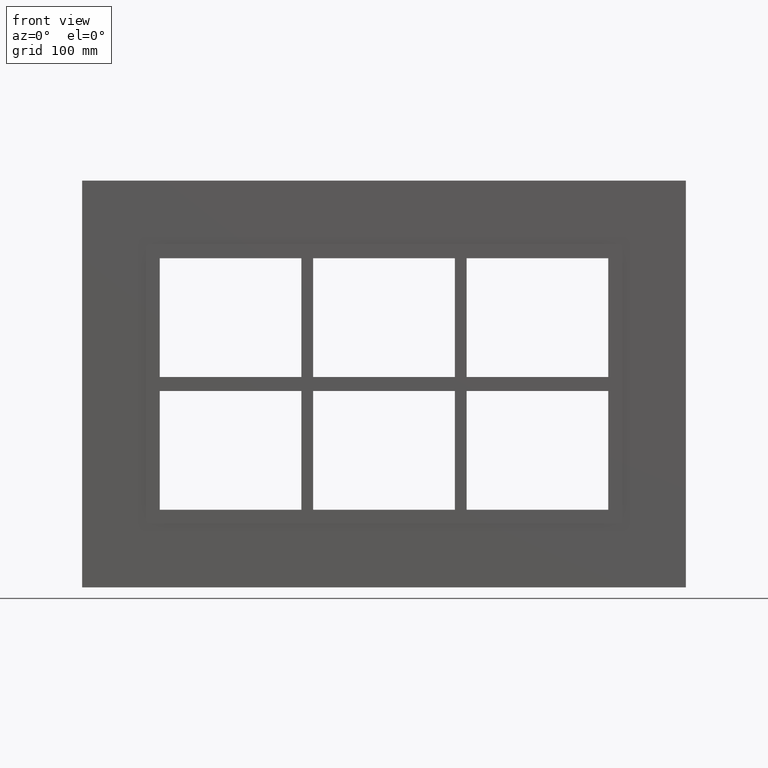
[diagram: clean part render]
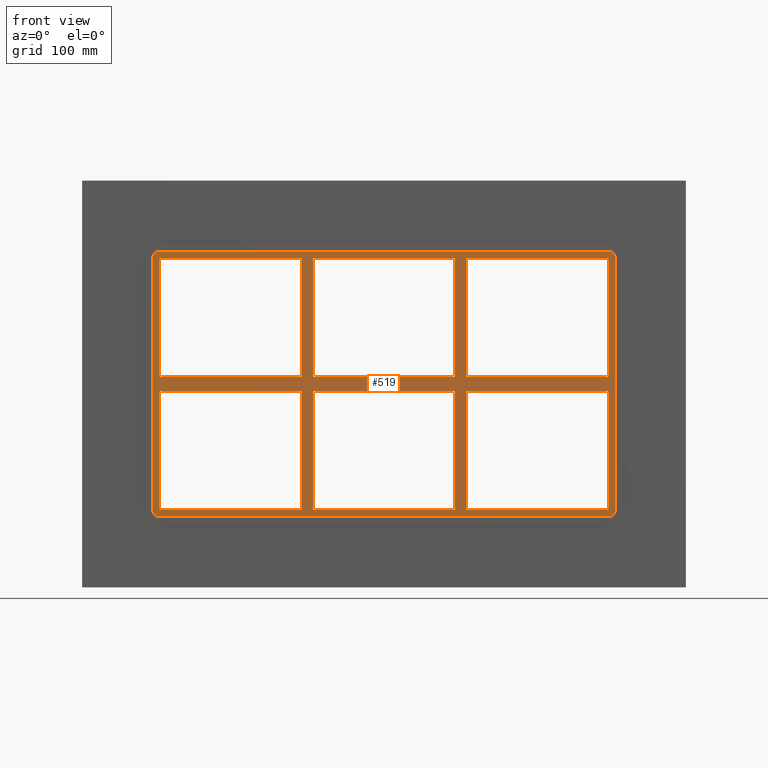
[diagram: same view with one face highlighted and labeled with its STEP entity id]
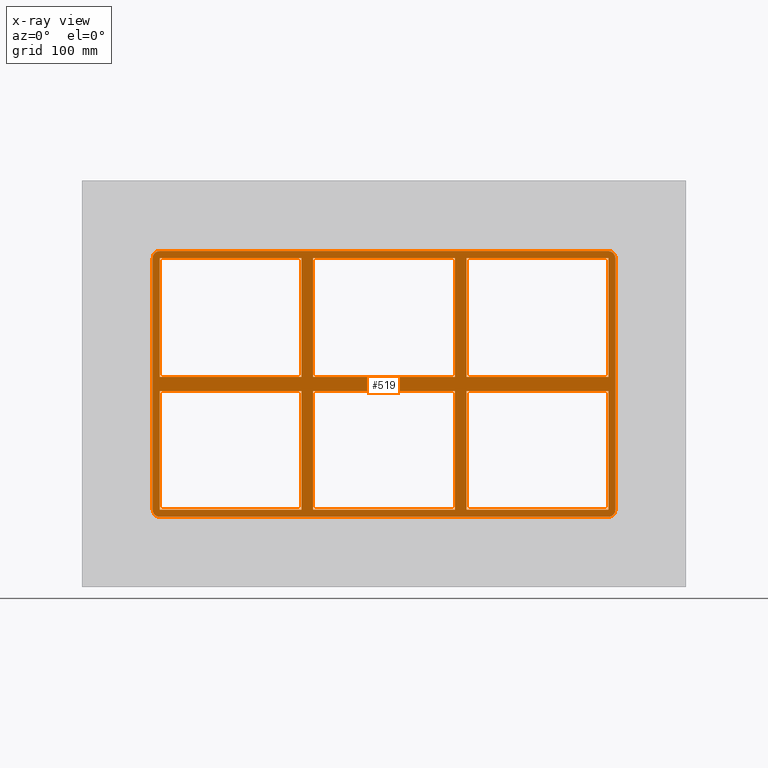
[diagram: x-ray of the same camera — body ghosted, the highlighted face saturated]
A machine part, front view. The second image highlights one B-rep face of the part: STEP entity #519.
The next image is the same camera in x-ray: the body ghosted, the highlighted face saturated — about 0% of this face is hidden behind the body in this view.
In plain terms, the highlighted planar face has unit normal (0, 1, 0).
Its self-contained STEP definition (entity closure, byte-faithful):
#73=CARTESIAN_POINT('',(60.24999999999865,-3.0,5.999999999999943));
#74=VERTEX_POINT('',#73);
#83=CARTESIAN_POINT('',(60.249999999998636,-3.0,107.00000000000003));
#84=VERTEX_POINT('',#83);
#85=CARTESIAN_POINT('',(60.24999999999865,-3.0,5.999999999999943));
#86=DIRECTION('',(0.0,0.0,1.0));
#87=VECTOR('',#86,101.00000000000009);
#88=LINE('',#85,#87);
#89=EDGE_CURVE('',#74,#84,#88,.T.);
#115=CARTESIAN_POINT('',(60.24999999999865,-3.0,-6.000000000009269));
#116=VERTEX_POINT('',#115);
#131=CARTESIAN_POINT('',(60.249999999998671,-3.0,-107.0));
#132=VERTEX_POINT('',#131);
#139=CARTESIAN_POINT('',(60.249999999998671,-3.0,-107.0));
#140=DIRECTION('',(0.0,0.0,1.0));
#141=VECTOR('',#140,100.99999999999072);
#142=LINE('',#139,#141);
#143=EDGE_CURVE('',#132,#116,#142,.T.);
#155=CARTESIAN_POINT('',(70.250000000003638,-3.0,5.999999999999943));
#156=VERTEX_POINT('',#155);
#171=CARTESIAN_POINT('',(70.250000000003638,-3.0,107.00000000000003));
#172=VERTEX_POINT('',#171);
#179=CARTESIAN_POINT('',(70.250000000003638,-3.0,107.00000000000003));
#180=DIRECTION('',(0.0,0.0,-1.0));
#181=VECTOR('',#180,101.00000000000009);
#182=LINE('',#179,#181);
#183=EDGE_CURVE('',#172,#156,#182,.T.);
#193=CARTESIAN_POINT('',(70.250000000003638,-3.0,-6.000000000009269));
#194=VERTEX_POINT('',#193);
#203=CARTESIAN_POINT('',(70.250000000003638,-3.0,-106.99999999998423));
#204=VERTEX_POINT('',#203);
#205=CARTESIAN_POINT('',(70.250000000003638,-3.0,-6.000000000009266));
#206=DIRECTION('',(0.0,0.0,-1.0));
#207=VECTOR('',#206,100.99999999997496);
#208=LINE('',#205,#207);
#209=EDGE_CURVE('',#194,#204,#208,.T.);
#242=CARTESIAN_POINT('',(-60.249999999996362,-3.0,-106.99999999998423));
#243=VERTEX_POINT('',#242);
#250=CARTESIAN_POINT('',(60.249999999998678,-3.0,-107.0));
#251=DIRECTION('',(-1.0,0.0,0.0));
#252=VECTOR('',#251,120.49999999999504);
#253=LINE('',#250,#252);
#254=EDGE_CURVE('',#132,#243,#253,.T.);
#265=CARTESIAN_POINT('',(190.75000000000011,-3.0,-107.0));
#266=VERTEX_POINT('',#265);
#267=CARTESIAN_POINT('',(190.75000000000011,-3.0,-107.0));
#268=DIRECTION('',(-1.0,0.0,0.0));
#269=VECTOR('',#268,120.49999999999646);
#270=LINE('',#267,#269);
#271=EDGE_CURVE('',#266,#204,#270,.T.);
#290=CARTESIAN_POINT('',(0.0,-3.0,0.0));
#291=DIRECTION('',(0.0,1.0,0.0));
#292=DIRECTION('',(0.0,0.0,1.0));
#293=AXIS2_PLACEMENT_3D('',#290,#291,#292);
#294=PLANE('',#293);
#295=CARTESIAN_POINT('',(196.75000000000006,-3.0,-107.0));
#296=VERTEX_POINT('',#295);
#297=CARTESIAN_POINT('',(190.75000000000003,-3.0,-113.0));
#298=VERTEX_POINT('',#297);
#299=CARTESIAN_POINT('',(190.75000000000003,-3.0,-107.0));
#300=DIRECTION('',(0.0,1.0,0.0));
#301=DIRECTION('',(0.707106781186548,0.0,-0.707106781186548));
#302=AXIS2_PLACEMENT_3D('',#299,#300,#301);
#303=CIRCLE('',#302,6.000000000000002);
#304=EDGE_CURVE('',#296,#298,#303,.T.);
#305=ORIENTED_EDGE('',*,*,#304,.F.);
#306=CARTESIAN_POINT('',(196.75000000000006,-3.0,107.00000000000001));
#307=VERTEX_POINT('',#306);
#308=CARTESIAN_POINT('',(196.75000000000006,-3.0,-107.0));
#309=DIRECTION('',(0.0,0.0,1.0));
#310=VECTOR('',#309,214.0);
#311=LINE('',#308,#310);
#312=EDGE_CURVE('',#296,#307,#311,.T.);
#313=ORIENTED_EDGE('',*,*,#312,.T.);
#314=CARTESIAN_POINT('',(190.75000000000003,-3.0,113.0));
#315=VERTEX_POINT('',#314);
#316=CARTESIAN_POINT('',(190.75000000000003,-3.0,107.00000000000001));
#317=DIRECTION('',(0.0,1.0,0.0));
#318=DIRECTION('',(0.70710678118655,0.0,0.707106781186545));
#319=AXIS2_PLACEMENT_3D('',#316,#317,#318);
#320=CIRCLE('',#319,6.000000000000001);
#321=EDGE_CURVE('',#315,#307,#320,.T.);
#322=ORIENTED_EDGE('',*,*,#321,.F.);
#323=CARTESIAN_POINT('',(-190.75000000000003,-3.0,113.0));
#324=VERTEX_POINT('',#323);
#325=CARTESIAN_POINT('',(190.75,-3.0,113.0));
#326=DIRECTION('',(-1.0,0.0,0.0));
#327=VECTOR('',#326,381.50000000000006);
#328=LINE('',#325,#327);
#329=EDGE_CURVE('',#315,#324,#328,.T.);
#330=ORIENTED_EDGE('',*,*,#329,.T.);
#331=CARTESIAN_POINT('',(-196.75000000000006,-3.0,107.0));
#332=VERTEX_POINT('',#331);
#333=CARTESIAN_POINT('',(-190.75000000000003,-3.0,107.0));
#334=DIRECTION('',(0.0,1.0,0.0));
#335=DIRECTION('',(-0.707106781186548,0.0,0.707106781186548));
#336=AXIS2_PLACEMENT_3D('',#333,#334,#335);
#337=CIRCLE('',#336,6.000000000000002);
#338=EDGE_CURVE('',#332,#324,#337,.T.);
#339=ORIENTED_EDGE('',*,*,#338,.F.);
#340=CARTESIAN_POINT('',(-196.75000000000006,-3.0,-107.0));
#341=VERTEX_POINT('',#340);
#342=CARTESIAN_POINT('',(-196.75000000000006,-3.0,107.0));
#343=DIRECTION('',(0.0,0.0,-1.0));
#344=VECTOR('',#343,214.0);
#345=LINE('',#342,#344);
#346=EDGE_CURVE('',#332,#341,#345,.T.);
#347=ORIENTED_EDGE('',*,*,#346,.T.);
#348=CARTESIAN_POINT('',(-190.75000000000003,-3.0,-113.0));
#349=VERTEX_POINT('',#348);
#350=CARTESIAN_POINT('',(-190.75000000000003,-3.0,-107.0));
#351=DIRECTION('',(0.0,1.0,0.0));
#352=DIRECTION('',(-0.707106781186548,0.0,-0.707106781186548));
#353=AXIS2_PLACEMENT_3D('',#350,#351,#352);
#354=CIRCLE('',#353,6.000000000000002);
#355=EDGE_CURVE('',#349,#341,#354,.T.);
#356=ORIENTED_EDGE('',*,*,#355,.F.);
#357=CARTESIAN_POINT('',(-190.75,-3.0,-113.0));
#358=DIRECTION('',(1.0,0.0,0.0));
#359=VECTOR('',#358,381.50000000000006);
#360=LINE('',#357,#359);
#361=EDGE_CURVE('',#349,#298,#360,.T.);
#362=ORIENTED_EDGE('',*,*,#361,.T.);
#363=EDGE_LOOP('',(#305,#313,#322,#330,#339,#347,#356,#362));
#364=FACE_OUTER_BOUND('',#363,.T.);
#365=ORIENTED_EDGE('',*,*,#254,.T.);
#366=CARTESIAN_POINT('',(-60.249999999996362,-3.0,-6.000000000009292));
#367=VERTEX_POINT('',#366);
#368=CARTESIAN_POINT('',(-60.249999999996362,-3.0,-6.000000000009294));
#369=DIRECTION('',(0.0,0.0,-1.0));
#370=VECTOR('',#369,100.99999999997493);
#371=LINE('',#368,#370);
#372=EDGE_CURVE('',#367,#243,#371,.T.);
#373=ORIENTED_EDGE('',*,*,#372,.F.);
#374=CARTESIAN_POINT('',(60.249999999998664,-3.0,-6.000000000009264));
#375=DIRECTION('',(-1.0,0.0,0.0));
#376=VECTOR('',#375,120.49999999999503);
#377=LINE('',#374,#376);
#378=EDGE_CURVE('',#116,#367,#377,.T.);
#379=ORIENTED_EDGE('',*,*,#378,.F.);
#380=ORIENTED_EDGE('',*,*,#143,.F.);
#381=EDGE_LOOP('',(#365,#373,#379,#380));
#382=FACE_BOUND('',#381,.T.);
#383=CARTESIAN_POINT('',(-60.249999999996362,-3.0,5.999999999999943));
#384=VERTEX_POINT('',#383);
#385=CARTESIAN_POINT('',(-60.249999999996362,-3.0,5.999999999999943));
#386=DIRECTION('',(1.0,0.0,0.0));
#387=VECTOR('',#386,120.499999999995);
#388=LINE('',#385,#387);
#389=EDGE_CURVE('',#384,#74,#388,.T.);
#390=ORIENTED_EDGE('',*,*,#389,.F.);
#391=CARTESIAN_POINT('',(-60.249999999996362,-3.0,107.00000000000003));
#392=VERTEX_POINT('',#391);
#393=CARTESIAN_POINT('',(-60.249999999996362,-3.0,107.00000000000003));
#394=DIRECTION('',(0.0,0.0,-1.0));
#395=VECTOR('',#394,101.00000000000009);
#396=LINE('',#393,#395);
#397=EDGE_CURVE('',#392,#384,#396,.T.);
#398=ORIENTED_EDGE('',*,*,#397,.F.);
#399=CARTESIAN_POINT('',(-60.249999999996362,-3.0,107.00000000000003));
#400=DIRECTION('',(1.0,0.0,0.0));
#401=VECTOR('',#400,120.49999999999498);
#402=LINE('',#399,#401);
#403=EDGE_CURVE('',#392,#84,#402,.T.);
#404=ORIENTED_EDGE('',*,*,#403,.T.);
#405=ORIENTED_EDGE('',*,*,#89,.F.);
#406=EDGE_LOOP('',(#390,#398,#404,#405));
#407=FACE_BOUND('',#406,.T.);
#408=ORIENTED_EDGE('',*,*,#183,.F.);
#409=CARTESIAN_POINT('',(190.75000000000011,-3.0,107.00000000000003));
#410=VERTEX_POINT('',#409);
#411=CARTESIAN_POINT('',(70.250000000003652,-3.0,107.00000000000003));
#412=DIRECTION('',(1.0,0.0,0.0));
#413=VECTOR('',#412,120.49999999999646);
#414=LINE('',#411,#413);
#415=EDGE_CURVE('',#172,#410,#414,.T.);
#416=ORIENTED_EDGE('',*,*,#415,.T.);
#417=CARTESIAN_POINT('',(190.74999999999991,-3.0,5.999999999999943));
#418=VERTEX_POINT('',#417);
#419=CARTESIAN_POINT('',(190.75000000000011,-3.0,107.00000000000003));
#420=DIRECTION('',(0.0,0.0,-1.0));
#421=VECTOR('',#420,101.00000000000009);
#422=LINE('',#419,#421);
#423=EDGE_CURVE('',#410,#418,#422,.T.);
#424=ORIENTED_EDGE('',*,*,#423,.T.);
#425=CARTESIAN_POINT('',(70.250000000003666,-3.0,5.999999999999943));
#426=DIRECTION('',(1.0,0.0,0.0));
#427=VECTOR('',#426,120.49999999999625);
#428=LINE('',#425,#427);
#429=EDGE_CURVE('',#156,#418,#428,.T.);
#430=ORIENTED_EDGE('',*,*,#429,.F.);
#431=EDGE_LOOP('',(#408,#416,#424,#430));
#432=FACE_BOUND('',#431,.T.);
#433=ORIENTED_EDGE('',*,*,#209,.F.);
#434=CARTESIAN_POINT('',(190.74999999999818,-3.0,-6.000000000009234));
#435=VERTEX_POINT('',#434);
#436=CARTESIAN_POINT('',(190.74999999999818,-3.0,-6.000000000009234));
#437=DIRECTION('',(-1.0,0.0,0.0));
#438=VECTOR('',#437,120.49999999999454);
#439=LINE('',#436,#438);
#440=EDGE_CURVE('',#435,#194,#439,.T.);
#441=ORIENTED_EDGE('',*,*,#440,.F.);
#442=CARTESIAN_POINT('',(190.75000000000011,-3.0,-6.000000000009237));
#443=DIRECTION('',(0.0,0.0,-1.0));
#444=VECTOR('',#443,100.99999999999075);
#445=LINE('',#442,#444);
#446=EDGE_CURVE('',#435,#266,#445,.T.);
#447=ORIENTED_EDGE('',*,*,#446,.T.);
#448=ORIENTED_EDGE('',*,*,#271,.T.);
#449=EDGE_LOOP('',(#433,#441,#447,#448));
#450=FACE_BOUND('',#449,.T.);
#451=CARTESIAN_POINT('',(-70.250000000001336,-3.0,-6.000000000009295));
#452=VERTEX_POINT('',#451);
#453=CARTESIAN_POINT('',(-190.74999999999974,-3.0,-6.000000000009322));
#454=VERTEX_POINT('',#453);
#455=CARTESIAN_POINT('',(-70.250000000001364,-3.0,-6.000000000009294));
#456=DIRECTION('',(-1.0,0.0,0.0));
#457=VECTOR('',#456,120.49999999999841);
#458=LINE('',#455,#457);
#459=EDGE_CURVE('',#452,#454,#458,.T.);
#460=ORIENTED_EDGE('',*,*,#459,.F.);
#461=CARTESIAN_POINT('',(-70.250000000001336,-3.0,-107.0));
#462=VERTEX_POINT('',#461);
#463=CARTESIAN_POINT('',(-70.250000000001336,-3.0,-107.0));
#464=DIRECTION('',(0.0,0.0,1.0));
#465=VECTOR('',#464,100.99999999999071);
#466=LINE('',#463,#465);
#467=EDGE_CURVE('',#462,#452,#466,.T.);
#468=ORIENTED_EDGE('',*,*,#467,.F.);
#469=CARTESIAN_POINT('',(-190.75000000000003,-3.0,-107.0));
#470=VERTEX_POINT('',#469);
#471=CARTESIAN_POINT('',(-70.250000000001336,-3.0,-107.0));
#472=DIRECTION('',(-1.0,0.0,0.0));
#473=VECTOR('',#472,120.49999999999866);
#474=LINE('',#471,#473);
#475=EDGE_CURVE('',#462,#470,#474,.T.);
#476=ORIENTED_EDGE('',*,*,#475,.T.);
#477=CARTESIAN_POINT('',(-190.75000000000003,-3.0,-107.0));
#478=DIRECTION('',(0.0,0.0,1.0));
#479=VECTOR('',#478,100.99999999999068);
#480=LINE('',#477,#479);
#481=EDGE_CURVE('',#470,#454,#480,.T.);
#482=ORIENTED_EDGE('',*,*,#481,.T.);
#483=EDGE_LOOP('',(#460,#468,#476,#482));
#484=FACE_BOUND('',#483,.T.);
#485=CARTESIAN_POINT('',(-190.74999999999974,-3.0,5.999999999999943));
#486=VERTEX_POINT('',#485);
#487=CARTESIAN_POINT('',(-190.75000000000003,-3.0,107.00000000000003));
#488=VERTEX_POINT('',#487);
#489=CARTESIAN_POINT('',(-190.75000000000003,-3.0,5.999999999999943));
#490=DIRECTION('',(0.0,0.0,1.0));
#491=VECTOR('',#490,101.00000000000011);
#492=LINE('',#489,#491);
#493=EDGE_CURVE('',#486,#488,#492,.T.);
#494=ORIENTED_EDGE('',*,*,#493,.T.);
#495=CARTESIAN_POINT('',(-70.250000000001364,-3.0,107.00000000000003));
#496=VERTEX_POINT('',#495);
#497=CARTESIAN_POINT('',(-190.75000000000003,-3.0,107.00000000000003));
#498=DIRECTION('',(1.0,0.0,0.0));
#499=VECTOR('',#498,120.49999999999866);
#500=LINE('',#497,#499);
#501=EDGE_CURVE('',#488,#496,#500,.T.);
#502=ORIENTED_EDGE('',*,*,#501,.T.);
#503=CARTESIAN_POINT('',(-70.25000000000135,-3.0,5.999999999999943));
#504=VERTEX_POINT('',#503);
#505=CARTESIAN_POINT('',(-70.25000000000135,-3.0,5.999999999999943));
#506=DIRECTION('',(0.0,0.0,1.0));
#507=VECTOR('',#506,101.00000000000009);
#508=LINE('',#505,#507);
#509=EDGE_CURVE('',#504,#496,#508,.T.);
#510=ORIENTED_EDGE('',*,*,#509,.F.);
#511=CARTESIAN_POINT('',(-190.74999999999974,-3.0,5.999999999999943));
#512=DIRECTION('',(1.0,0.0,0.0));
#513=VECTOR('',#512,120.49999999999839);
#514=LINE('',#511,#513);
#515=EDGE_CURVE('',#486,#504,#514,.T.);
#516=ORIENTED_EDGE('',*,*,#515,.F.);
#517=EDGE_LOOP('',(#494,#502,#510,#516));
#518=FACE_BOUND('',#517,.T.);
#519=ADVANCED_FACE('',(#364,#382,#407,#432,#450,#484,#518),#294,.F.);